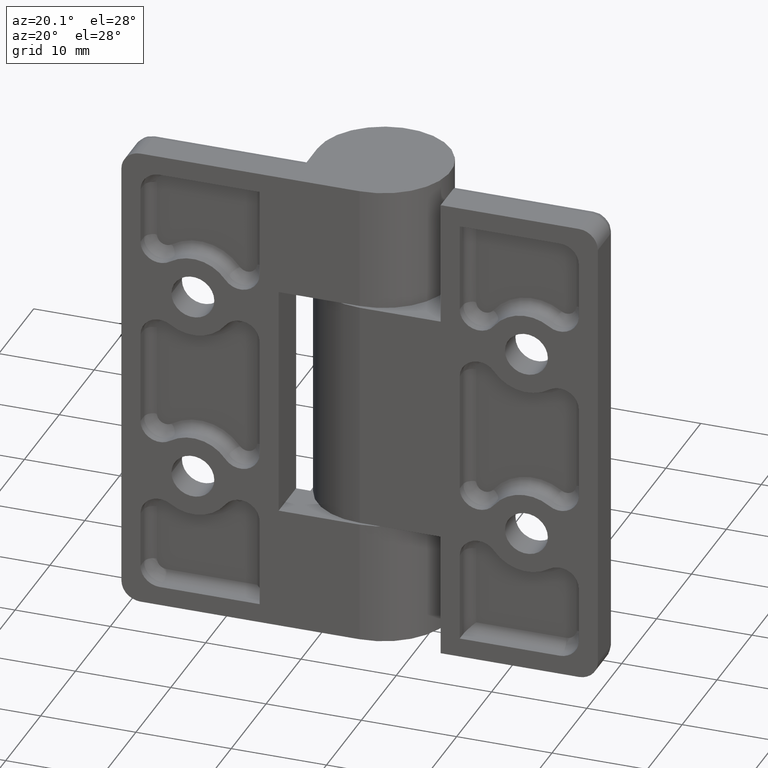
[diagram: clean part render]
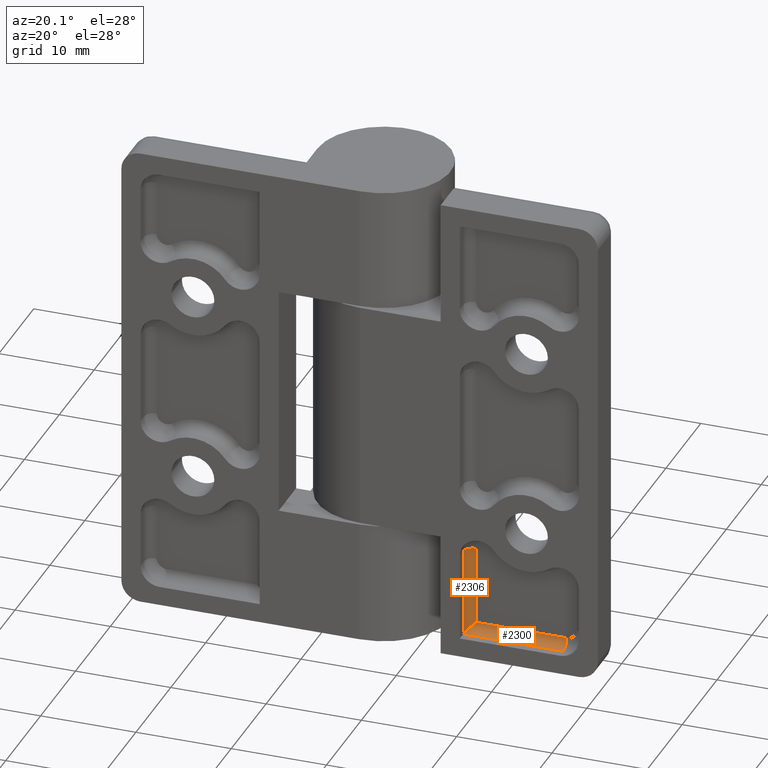
[diagram: same view with one multi-face feature highlighted, each face labeled with its STEP entity id]
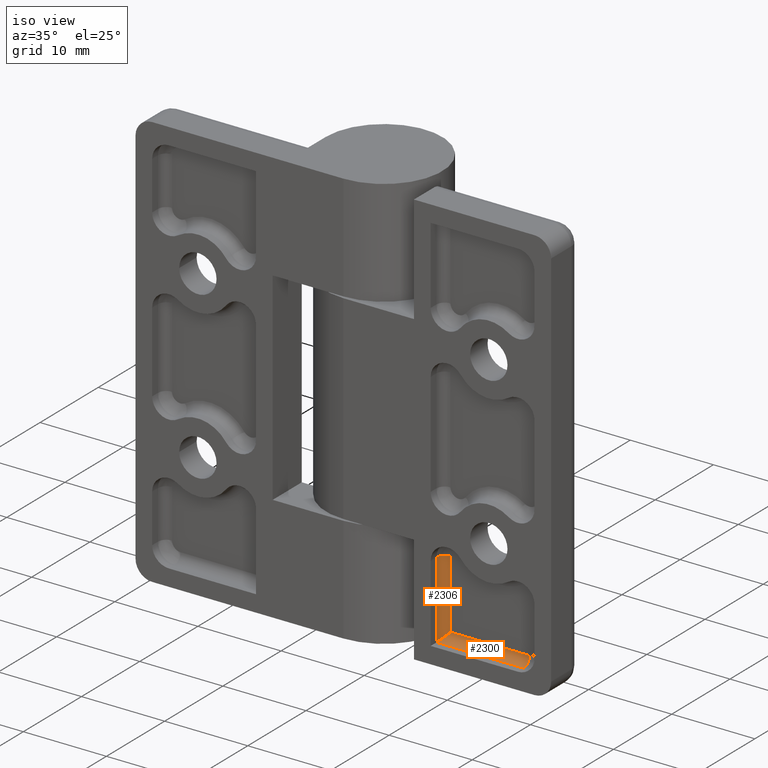
[diagram: same view with one multi-face feature highlighted, each face labeled with its STEP entity id]
A machine part, auxiliary view. The highlighted faces form ONE feature: a constant-radius fillet chain: 2 tangent blend faces with common blend radius 1 mm. The faces share edges in the B-rep.
A second angle (iso view) of the same feature is appended — it is thin or edge-on in the first view.
Their STEP definitions:
[1] entity #2300 (Cylinder):
#224=FACE_OUTER_BOUND('',#386,.T.);
#386=EDGE_LOOP('',(#1833,#1834,#1835,#1836));
#476=ELLIPSE('',#2532,1.4142135623731,1.);
#555=LINE('',#3951,#708);
#556=LINE('',#3954,#709);
#708=VECTOR('',#3073,9.5);
#709=VECTOR('',#3076,10.5);
#872=CIRCLE('',#2531,1.);
#1064=VERTEX_POINT('',#3947);
#1065=VERTEX_POINT('',#3948);
#1066=VERTEX_POINT('',#3950);
#1067=VERTEX_POINT('',#3952);
#1335=EDGE_CURVE('',#1064,#1065,#872,.T.);
#1336=EDGE_CURVE('',#1065,#1066,#555,.T.);
#1337=EDGE_CURVE('',#1066,#1067,#476,.T.);
#1338=EDGE_CURVE('',#1067,#1064,#556,.T.);
#1833=ORIENTED_EDGE('',*,*,#1335,.T.);
#1834=ORIENTED_EDGE('',*,*,#1336,.T.);
#1835=ORIENTED_EDGE('',*,*,#1337,.T.);
#1836=ORIENTED_EDGE('',*,*,#1338,.T.);
#2194=CYLINDRICAL_SURFACE('',#2530,1.);
#2300=ADVANCED_FACE('',(#224),#2194,.F.);
#2530=AXIS2_PLACEMENT_3D('',#3946,#3069,#3070);
#2531=AXIS2_PLACEMENT_3D('',#3949,#3071,#3072);
#2532=AXIS2_PLACEMENT_3D('',#3953,#3074,#3075);
#3069=DIRECTION('center_axis',(-1.,-1.67480083255454E-16,0.));
#3070=DIRECTION('ref_axis',(-1.18426302583619E-16,0.707106781186546,0.707106781186549));
#3071=DIRECTION('center_axis',(-1.,0.,0.));
#3072=DIRECTION('ref_axis',(0.,0.,1.));
#3073=DIRECTION('',(1.,1.67480083255454E-16,0.));
#3074=DIRECTION('center_axis',(0.707106781186548,0.,-0.707106781186548));
#3075=DIRECTION('ref_axis',(0.707106781186548,2.36852605167239E-16,0.707106781186548));
#3076=DIRECTION('',(-1.,-1.67480083255454E-16,0.));
#3946=CARTESIAN_POINT('Origin',(-13.4478340074031,-6.,22.));
#3947=CARTESIAN_POINT('',(-21.,-6.,23.));
#3948=CARTESIAN_POINT('',(-21.,-5.,22.));
#3949=CARTESIAN_POINT('Origin',(-21.,-6.,22.));
#3950=CARTESIAN_POINT('',(-11.5,-5.,22.));
#3951=CARTESIAN_POINT('',(-13.4478340074031,-5.,22.));
#3952=CARTESIAN_POINT('',(-10.5,-6.,23.));
#3953=CARTESIAN_POINT('Origin',(-11.5,-6.,22.));
#3954=CARTESIAN_POINT('',(-13.4478340074031,-6.,23.));
[2] entity #2306 (Cylinder):
#230=FACE_OUTER_BOUND('',#392,.T.);
#392=EDGE_LOOP('',(#1857,#1858,#1859,#1860));
#476=ELLIPSE('',#2532,1.4142135623731,1.);
#559=LINE('',#4022,#712);
#560=LINE('',#4023,#713);
#712=VECTOR('',#3111,8.25);
#713=VECTOR('',#3112,9.25);
#883=CIRCLE('',#2545,0.999999999999999);
#1066=VERTEX_POINT('',#3950);
#1067=VERTEX_POINT('',#3952);
#1076=VERTEX_POINT('',#4016);
#1077=VERTEX_POINT('',#4017);
#1337=EDGE_CURVE('',#1066,#1067,#476,.T.);
#1351=EDGE_CURVE('',#1076,#1077,#883,.T.);
#1354=EDGE_CURVE('',#1066,#1077,#559,.T.);
#1355=EDGE_CURVE('',#1076,#1067,#560,.T.);
#1857=ORIENTED_EDGE('',*,*,#1354,.T.);
#1858=ORIENTED_EDGE('',*,*,#1351,.F.);
#1859=ORIENTED_EDGE('',*,*,#1355,.T.);
#1860=ORIENTED_EDGE('',*,*,#1337,.F.);
#2196=CYLINDRICAL_SURFACE('',#2548,1.);
#2306=ADVANCED_FACE('',(#230),#2196,.F.);
#2532=AXIS2_PLACEMENT_3D('',#3953,#3074,#3075);
#2545=AXIS2_PLACEMENT_3D('',#4018,#3103,#3104);
#2548=AXIS2_PLACEMENT_3D('',#4021,#3109,#3110);
#3074=DIRECTION('center_axis',(0.707106781186548,0.,-0.707106781186548));
#3075=DIRECTION('ref_axis',(0.707106781186548,2.36852605167239E-16,0.707106781186548));
#3103=DIRECTION('center_axis',(0.,0.,1.));
#3104=DIRECTION('ref_axis',(1.,0.,0.));
#3109=DIRECTION('center_axis',(-1.38777878078145E-16,-6.11695753251233E-17,
1.));
#3110=DIRECTION('ref_axis',(0.707106781186548,0.707106781186548,1.41384200182432E-16));
#3111=DIRECTION('',(1.38777878078145E-16,6.11695753251233E-17,-1.));
#3112=DIRECTION('',(-1.38777878078145E-16,-6.11695753251233E-17,1.));
#3950=CARTESIAN_POINT('',(-11.5,-5.,22.));
#3952=CARTESIAN_POINT('',(-10.5,-6.,23.));
#3953=CARTESIAN_POINT('Origin',(-11.5,-6.,22.));
#4016=CARTESIAN_POINT('',(-10.5,-6.,13.75));
#4017=CARTESIAN_POINT('',(-11.5,-5.,13.75));
#4018=CARTESIAN_POINT('Origin',(-11.5,-6.,13.75));
#4021=CARTESIAN_POINT('Origin',(-11.5,-6.,15.8294825095453));
#4022=CARTESIAN_POINT('',(-11.5,-5.,15.8294825095453));
#4023=CARTESIAN_POINT('',(-10.5,-6.,15.8294825095453));